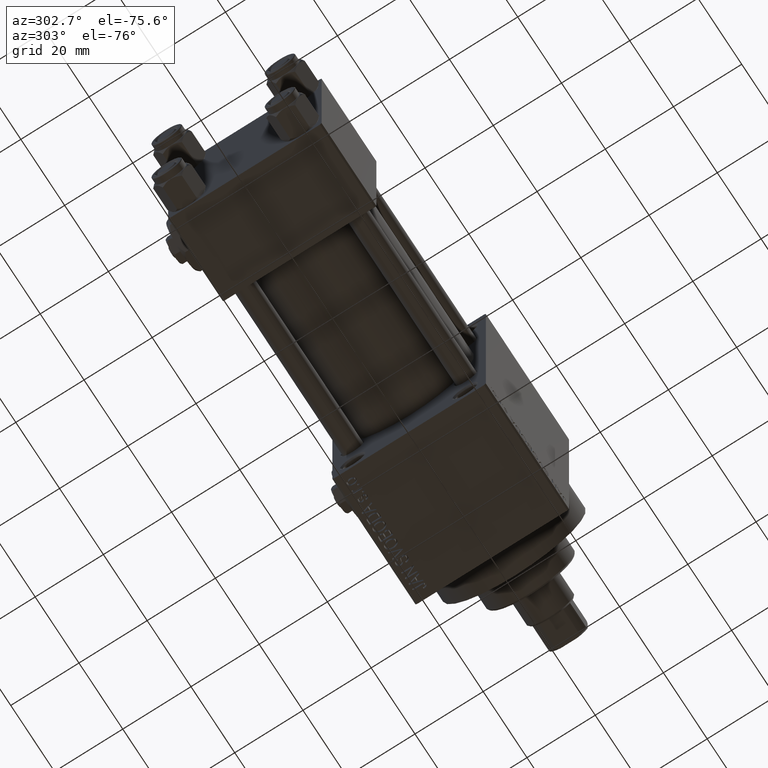
[diagram: clean part render]
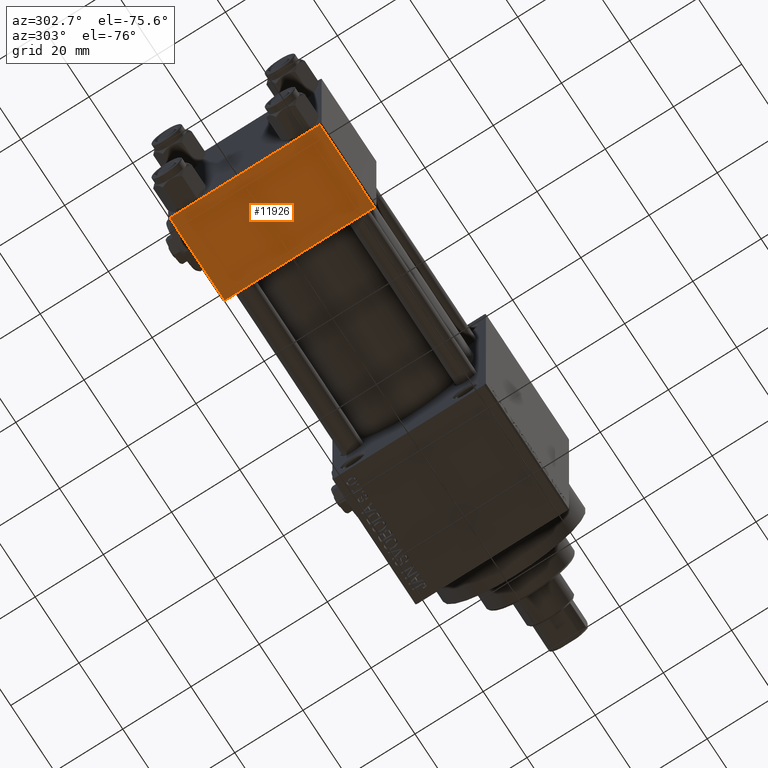
[diagram: same view with one face highlighted and labeled with its STEP entity id]
A machine part, auxiliary view. The second image highlights one B-rep face of the part: STEP entity #11926.
In plain terms, the highlighted planar face has unit normal (0, 0, -1).
Its self-contained STEP definition (entity closure, byte-faithful):
#3657 = LINE ( 'NONE', #44627, #49123 ) ;
#4742 = VERTEX_POINT ( 'NONE', #21046 ) ;
#6339 = VECTOR ( 'NONE', #30110, 1000.000000000000000 ) ;
#6357 = LINE ( 'NONE', #21492, #34855 ) ;
#7152 = EDGE_LOOP ( 'NONE', ( #45220, #30645, #16538, #49035 ) ) ;
#7580 = PLANE ( 'NONE',  #10791 ) ;
#8137 = VERTEX_POINT ( 'NONE', #19941 ) ;
#8173 = LINE ( 'NONE', #26078, #46663 ) ;
#8809 = CARTESIAN_POINT ( 'NONE',  ( 25.00000000000000000, 21.99999999999999289, -22.49999999999999645 ) ) ;
#10791 = AXIS2_PLACEMENT_3D ( 'NONE', #37616, #46046, #19229 ) ;
#11546 = FACE_OUTER_BOUND ( 'NONE', #7152, .T. ) ;
#11926 = ADVANCED_FACE ( 'NONE', ( #11546 ), #7580, .T. ) ;
#11970 = VERTEX_POINT ( 'NONE', #22973 ) ;
#13117 = VERTEX_POINT ( 'NONE', #8809 ) ;
#16538 = ORIENTED_EDGE ( 'NONE', *, *, #19198, .T. ) ;
#19198 = EDGE_CURVE ( 'NONE', #13117, #4742, #6357, .T. ) ;
#19229 = DIRECTION ( 'NONE',  ( 0.000000000000000000, 1.000000000000000000, 2.312964634635742957E-16 ) ) ;
#19656 = LINE ( 'NONE', #26400, #6339 ) ;
#19941 = CARTESIAN_POINT ( 'NONE',  ( 0.000000000000000000, 21.99999999999999289, -22.49999999999999645 ) ) ;
#20701 = EDGE_CURVE ( 'NONE', #8137, #11970, #19656, .T. ) ;
#21046 = CARTESIAN_POINT ( 'NONE',  ( 25.00000000000000000, -21.99999999999997158, -22.50000000000000711 ) ) ;
#21492 = CARTESIAN_POINT ( 'NONE',  ( 25.00000000000000000, 22.50000000000000000, -22.49999999999999645 ) ) ;
#21963 = EDGE_CURVE ( 'NONE', #4742, #11970, #3657, .T. ) ;
#22274 = DIRECTION ( 'NONE',  ( -1.000000000000000000, 0.000000000000000000, 0.000000000000000000 ) ) ;
#22973 = CARTESIAN_POINT ( 'NONE',  ( 0.000000000000000000, -21.99999999999997158, -22.50000000000000711 ) ) ;
#23315 = DIRECTION ( 'NONE',  ( 1.000000000000000000, 0.000000000000000000, 0.000000000000000000 ) ) ;
#25479 = DIRECTION ( 'NONE',  ( 0.000000000000000000, -1.000000000000000000, -2.312964634635742957E-16 ) ) ;
#26078 = CARTESIAN_POINT ( 'NONE',  ( 25.00000000000000000, 21.99999999999999289, -22.49999999999999645 ) ) ;
#26400 = CARTESIAN_POINT ( 'NONE',  ( 0.000000000000000000, 22.50000000000000000, -22.49999999999999645 ) ) ;
#30110 = DIRECTION ( 'NONE',  ( 0.000000000000000000, -1.000000000000000000, -2.312964634635742957E-16 ) ) ;
#30645 = ORIENTED_EDGE ( 'NONE', *, *, #37857, .T. ) ;
#34855 = VECTOR ( 'NONE', #25479, 1000.000000000000000 ) ;
#37616 = CARTESIAN_POINT ( 'NONE',  ( 25.00000000000000000, 22.50000000000000000, -22.49999999999999645 ) ) ;
#37857 = EDGE_CURVE ( 'NONE', #8137, #13117, #8173, .T. ) ;
#44627 = CARTESIAN_POINT ( 'NONE',  ( 0.000000000000000000, -21.99999999999998579, -22.50000000000000711 ) ) ;
#45220 = ORIENTED_EDGE ( 'NONE', *, *, #20701, .F. ) ;
#46046 = DIRECTION ( 'NONE',  ( 0.000000000000000000, 2.312964634635742957E-16, -1.000000000000000000 ) ) ;
#46663 = VECTOR ( 'NONE', #23315, 1000.000000000000000 ) ;
#49035 = ORIENTED_EDGE ( 'NONE', *, *, #21963, .T. ) ;
#49123 = VECTOR ( 'NONE', #22274, 1000.000000000000000 ) ;